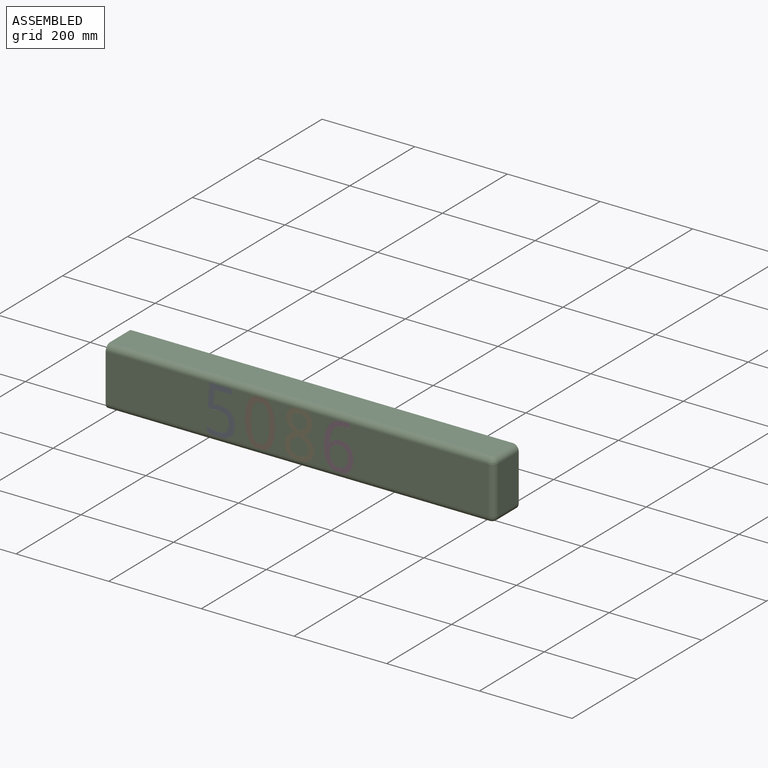
[diagram: assembled view]
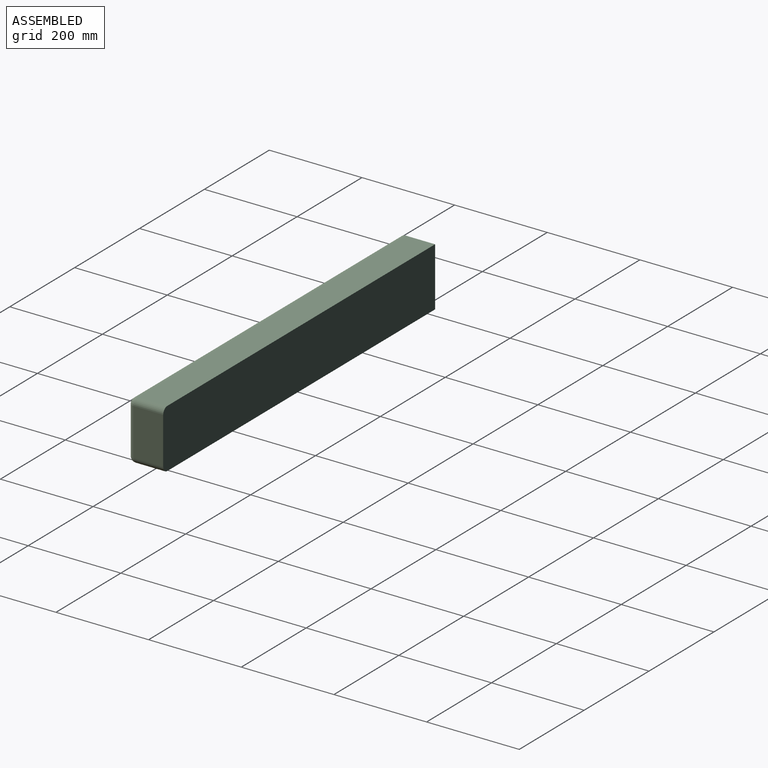
[diagram: assembled view, second angle]
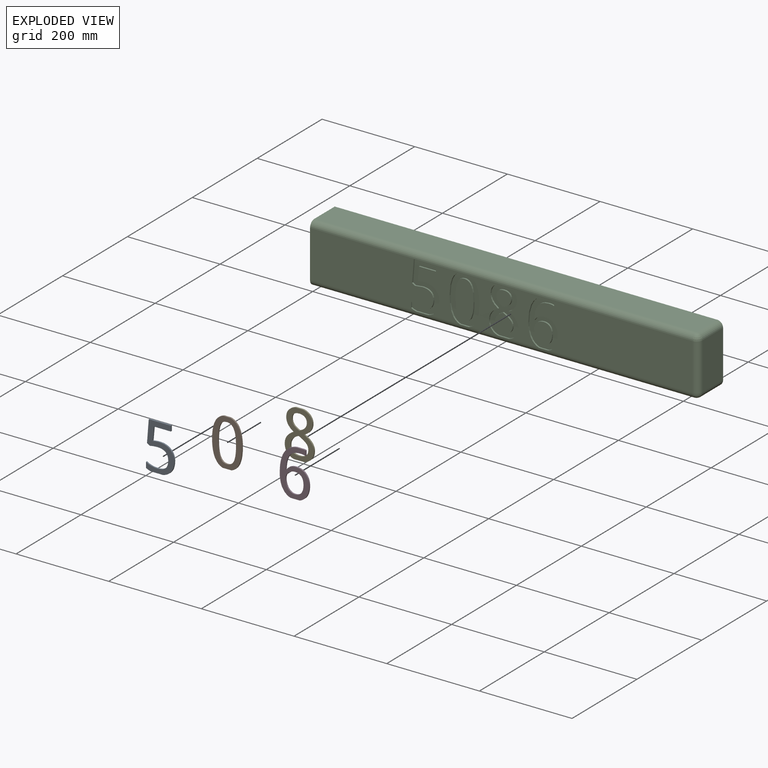
[diagram: exploded view]
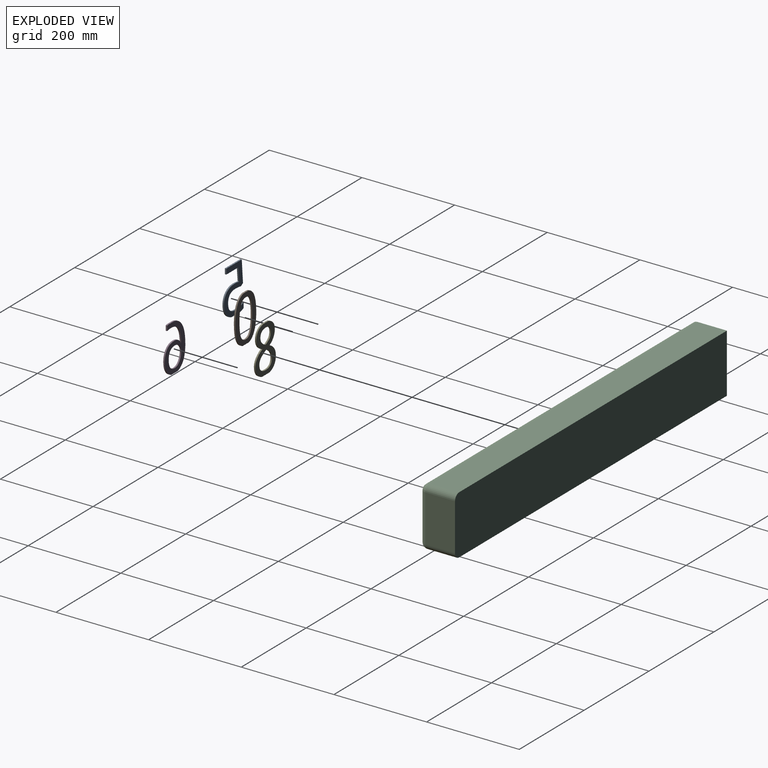
[diagram: exploded view, second angle]
ASSEMBLY  parts=5 mates=4
PART A: 20 faces, bbox 60.8x3.2x101.1 mm
  f0: extruded ~14.28x7.4mm, area 51.6mm2, adj f1,f17,f18,f19
  f1: extruded ~24.93x9.51mm, area 87.3mm2, adj f0,f2,f18,f19
  f2: extruded ~21.6x8.92mm, area 76.6mm2, adj f1,f3,f18,f19
  f3: extruded ~23.4x7.88mm, area 80.2mm2, adj f2,f4,f18,f19
  f4: extruded ~14.4x3.18mm, area 46mm2, adj f3,f5,f18,f19
  f5: plane 28.86x3.18mm, normal (1,0,-0.09), area 92mm2, adj f4,f6,f18,f19
  f6: plane 36.67x3.18mm, normal (0,0,-1), area 116.4mm2, adj f5,f7,f18,f19
  f7: plane 11.44x3.18mm, normal (1,0,0), area 36.3mm2, adj f6,f8,f18,f19
  f8: plane 47.56x3.18mm, normal (0,0,1), area 151mm2, adj f7,f9,f18,f19
  f9: plane 47.4x3.79mm, normal (-1,0,0.08), area 151mm2, adj f8,f10,f18,f19
  f10: plane 6.22x3.92mm, normal (-0.53,0,-0.85), area 23.3mm2, adj f9,f11,f18,f19
  f11: extruded ~15.92x3.18mm, area 50.9mm2, adj f10,f12,f18,f19
  f12: extruded ~23.7x20.26mm, area 113.4mm2, adj f11,f13,f18,f19
  f13: extruded ~23.15x21.63mm, area 115.4mm2, adj f12,f14,f18,f19
  f14: extruded ~24.8x6.61mm, area 82.7mm2, adj f13,f15,f18,f19
  f15: plane 11.86x3.18mm, normal (-1,0,0), area 37.7mm2, adj f14,f16,f18,f19
  f16: extruded ~10.55x4.06mm, area 36mm2, adj f15,f17,f18,f19
  f17: plane 26.49x3.18mm, normal (0,0,-1), area 84.1mm2, adj f0,f16,f18,f19
  f18: plane 101.14x60.83mm, normal (0,1,0), area 2432.5mm2, adj f0,f1,f2,f3,f4,f5,f6,f7
  f19: plane 101.14x60.83mm, normal (0,-1,0), area 2432.5mm2, adj f0,f1,f2,f3,f4,f5,f6,f7
PART B: 18 faces, bbox 64.4x3.2x103.7 mm
  f0: extruded ~14.87x9.68mm, area 59.8mm2, adj f1,f15,f16,f17
  f1: extruded ~14.65x9.65mm, area 59.2mm2, adj f0,f2,f16,f17
  f2: extruded ~31.56x4.64mm, area 102mm2, adj f1,f3,f16,f17
  f3: extruded ~31.44x4.64mm, area 101.6mm2, adj f2,f4,f16,f17
  f4: extruded ~14.65x9.61mm, area 59.1mm2, adj f3,f5,f16,f17
  f5: extruded ~14.87x9.68mm, area 59.8mm2, adj f4,f6,f16,f17
  f6: extruded ~31.38x4.75mm, area 101.5mm2, adj f5,f15,f16,f17
  f7: extruded ~14.53x11.95mm, area 61.1mm2, adj f8,f14,f16,f17
  f8: plane 19.1x3.18mm, normal (0,0,-1), area 60.6mm2, adj f7,f9,f16,f17
  f9: extruded ~50.51x22.6mm, area 188.1mm2, adj f8,f10,f16,f17
  f10: extruded ~38.48x8.16mm, area 126.4mm2, adj f9,f11,f16,f17
  f11: extruded ~17.1x12.61mm, area 69.5mm2, adj f10,f12,f16,f17
  f12: plane 14.19x3.18mm, normal (0,0,1), area 45mm2, adj f11,f13,f16,f17
  f13: extruded ~51.09x24.91mm, area 195.6mm2, adj f12,f14,f16,f17
  f14: extruded ~38.56x8.14mm, area 126.6mm2, adj f7,f13,f16,f17
  f15: extruded ~31.53x4.75mm, area 102mm2, adj f0,f6,f16,f17
  f16: plane 103.72x64.36mm, normal (0,1,0), area 2814.7mm2, adj f0,f1,f2,f3,f4,f5,f6,f7
  f17: plane 103.72x64.36mm, normal (0,-1,0), area 2814.7mm2, adj f0,f1,f2,f3,f4,f5,f6,f7
PART C: 110 faces, bbox 838.2x76.2x127 mm
  f0: plane 103.72x71.73mm, normal (0,-1,0), area 3307.8mm2, adj f10,f15,f53,f62,f63,f64,f65,f67
  f1: plane 102.7x86.81mm, normal (0,-1,0), area 3521.3mm2, adj f10,f15,f23,f37,f38,f55,f56,f57
  f2: plane 341.64x102mm, normal (0,-1,0), area 31270.8mm2, adj f10,f13,f15,f25,f26,f27,f28,f29
  f3: plane 838.2x127mm, normal (0,1,0), area 106382.2mm2, adj f4,f6,f7,f8,f9,f12
  f4: plane 825.5x63.5mm, normal (0,0,1), area 52419.2mm2, adj f3,f8,f12,f15
  f5: plane 330.51x102.99mm, normal (0,-1,0), area 28673.3mm2, adj f8,f10,f15,f78,f84,f85,f88,f89
  f6: plane 825.5x63.5mm, normal (0,0,-1), area 52419.2mm2, adj f3,f8,f9,f10
  f7: plane 101.6x63.5mm, normal (1,0,0), area 6451.6mm2, adj f3,f9,f12,f13
  f8: plane 127x76.2mm, normal (-1,0,0), area 9608.2mm2, adj f3,f4,f5,f6,f10,f15
  f9: cylinder r=12.7mm len=63.5mm, axis (0,-1,0), area 1266.8mm2, adj f3,f6,f7,f11
  f10: cylinder r=12.7mm len=825.5mm, axis (1,0,0), area 16468mm2, adj f0,f1,f2,f5,f6,f8,f11,f24
  f11: sphere r=12.7mm, area 253.4mm2, adj f9,f10,f13
  f12: cylinder r=12.7mm len=63.5mm, axis (0,1,0), area 1266.8mm2, adj f3,f4,f7,f14
  f13: cylinder r=12.7mm len=101.6mm, axis (0,0,1), area 2026.8mm2, adj f2,f7,f11,f14
  f14: sphere r=12.7mm, area 253.4mm2, adj f12,f13,f15
  f15: cylinder r=12.7mm len=825.5mm, axis (-1,0,0), area 16468mm2, adj f0,f1,f2,f4,f5,f8,f14,f36
  f16: extruded ~15.37x4.72mm, area 52.2mm2, adj f17,f39,f40,f107
  f17: extruded ~17.22x4.92mm, area 58mm2, adj f16,f18,f40,f107
  f18: extruded ~13.67x6.06mm, area 49.2mm2, adj f17,f19,f40,f107
  f19: extruded ~14.62x7.61mm, area 54.5mm2, adj f18,f20,f40,f107
  f20: extruded ~18.08x5.58mm, area 61.1mm2, adj f19,f21,f40,f107
  f21: extruded ~12.76x5.93mm, area 46mm2, adj f20,f22,f40,f107
  f22: extruded ~14.66x5.59mm, area 51.1mm2, adj f21,f39,f40,f107
  f23: extruded ~14.29x10.23mm, area 56.7mm2, adj f1,f24,f38,f40
  f24: plane 19.73x3.18mm, normal (0,0,1), area 62.6mm2, adj f10,f23,f25,f40
  f25: extruded ~12.2x7.67mm, area 46.3mm2, adj f2,f24,f26,f40
  f26: extruded ~24.78x8.3mm, area 85mm2, adj f2,f25,f27,f40
  f27: extruded ~22.39x7.61mm, area 76.9mm2, adj f2,f26,f28,f40
  f28: extruded ~21.06x8.19mm, area 73.9mm2, adj f2,f27,f29,f40
  f29: extruded ~21.14x11.71mm, area 80.9mm2, adj f2,f28,f30,f40
  f30: plane 3.18x0.82mm, normal (0,0,-1), area 2.6mm2, adj f2,f29,f31,f40
  f31: extruded ~30.8x8.43mm, area 103mm2, adj f2,f30,f32,f40
  f32: extruded ~23.18x9.72mm, area 82.8mm2, adj f2,f31,f33,f40
  f33: extruded ~11.44x3.18mm, area 36.9mm2, adj f2,f32,f34,f40
  f34: plane 10.67x3.18mm, normal (-1,0,0), area 33.9mm2, adj f2,f33,f35,f40
  f35: extruded ~3.44x3.18mm, area 11.2mm2, adj f2,f34,f36,f40
  f36: plane 16.67x3.18mm, normal (0,0,-1), area 52.9mm2, adj f15,f35,f37,f40
  f37: extruded ~58.54x35.79mm, area 240.6mm2, adj f1,f36,f38,f40
  f38: extruded ~32.83x8.93mm, area 110mm2, adj f1,f23,f37,f40
  f39: extruded ~13.47x5.38mm, area 47.6mm2, adj f16,f22,f40,f107
  f40: plane 102.7x63.46mm, normal (0,-1,0), area 2724.5mm2, adj f16,f17,f18,f19,f20,f21,f22,f23
  f41: extruded ~22.4x17.51mm, area 95.7mm2, adj f42,f68,f69,f108
  f42: plane 3.18x2.05mm, normal (0.43,0,0.9), area 7.2mm2, adj f41,f43,f69,f108
  f43: extruded ~14.75x9.88mm, area 56.7mm2, adj f42,f44,f69,f108
  f44: extruded ~11x4.34mm, area 38.5mm2, adj f43,f45,f69,f108
  f45: extruded ~12.57x5.14mm, area 44.5mm2, adj f44,f46,f69,f108
  f46: extruded ~14.51x4.52mm, area 49.3mm2, adj f45,f68,f69,f108
  f47: extruded ~19.16x15.99mm, area 84.2mm2, adj f48,f66,f69,f70
  f48: extruded ~12.78x8.65mm, area 49.4mm2, adj f47,f49,f69,f70
  f49: extruded ~10.51x3.41mm, area 35.8mm2, adj f48,f50,f69,f70
  f50: extruded ~10.61x4.3mm, area 37.6mm2, adj f49,f51,f69,f70
  f51: extruded ~11.62x3.66mm, area 39.5mm2, adj f50,f52,f69,f70
  f52: extruded ~11.91x3.66mm, area 40.4mm2, adj f51,f66,f69,f70
  f53: extruded ~11.36x5.74mm, area 40.8mm2, adj f0,f54,f67,f69
  f54: plane 23.05x3.18mm, normal (0,0,1), area 73.2mm2, adj f10,f53,f55,f69
  f55: extruded ~11.76x6.2mm, area 42.6mm2, adj f1,f54,f56,f69
  f56: extruded ~20.06x8.68mm, area 71.7mm2, adj f1,f55,f57,f69
  f57: extruded ~27.08x21.28mm, area 115.3mm2, adj f1,f56,f58,f69
  f58: extruded ~24.74x18.04mm, area 103mm2, adj f1,f57,f59,f69
  f59: extruded ~17.71x7.85mm, area 63.7mm2, adj f1,f58,f60,f69
  f60: extruded ~12.61x5.82mm, area 44.6mm2, adj f1,f59,f61,f69
  f61: plane 15.64x3.18mm, normal (0,0,-1), area 49.6mm2, adj f15,f60,f62,f69
  f62: extruded ~12.57x5.79mm, area 44.4mm2, adj f0,f61,f63,f69
  f63: extruded ~17.61x8.04mm, area 63.7mm2, adj f0,f62,f64,f69
  f64: extruded ~25.42x16.21mm, area 100.4mm2, adj f0,f63,f65,f69
  f65: extruded ~27.08x19.43mm, area 112.3mm2, adj f0,f64,f67,f69
  f66: extruded ~10.61x4.34mm, area 37.6mm2, adj f47,f52,f69,f70
  f67: extruded ~19.97x8.33mm, area 71mm2, adj f0,f53,f65,f69
  f68: extruded ~19.01x16.54mm, area 91.7mm2, adj f41,f46,f69,f108
  f69: plane 102.23x63.17mm, normal (0,-1,0), area 3090.1mm2, adj f41,f42,f43,f44,f45,f46,f47,f48
  f70: plane 33.43x32.17mm, normal (0,-1,0), area 816.9mm2, adj f47,f48,f49,f50,f51,f52,f66
  f71: extruded ~14.87x9.68mm, area 59.8mm2, adj f72,f86,f87,f109
  f72: extruded ~14.65x9.65mm, area 59.2mm2, adj f71,f73,f87,f109
  f73: extruded ~31.56x4.64mm, area 102mm2, adj f72,f74,f87,f109
  f74: extruded ~31.44x4.64mm, area 101.6mm2, adj f73,f75,f87,f109
  f75: extruded ~14.65x9.61mm, area 59.1mm2, adj f74,f76,f87,f109
  f76: extruded ~14.87x9.68mm, area 59.8mm2, adj f75,f77,f87,f109
  f77: extruded ~31.38x4.75mm, area 101.5mm2, adj f76,f86,f87,f109
  f78: extruded ~14.53x11.95mm, area 61.1mm2, adj f5,f79,f85,f87
  f79: plane 19.1x3.18mm, normal (0,0,1), area 60.6mm2, adj f10,f78,f80,f87
  f80: extruded ~50.51x22.6mm, area 188.1mm2, adj f0,f79,f81,f87
  f81: extruded ~38.48x8.16mm, area 126.4mm2, adj f0,f80,f82,f87
  f82: extruded ~17.1x12.61mm, area 69.5mm2, adj f0,f81,f83,f87
  f83: plane 14.19x3.18mm, normal (0,0,-1), area 45mm2, adj f15,f82,f84,f87
  f84: extruded ~51.09x24.91mm, area 195.6mm2, adj f5,f83,f85,f87
  f85: extruded ~38.56x8.14mm, area 126.6mm2, adj f5,f78,f84,f87
  f86: extruded ~31.53x4.75mm, area 102mm2, adj f71,f77,f87,f109
  f87: plane 103.72x64.36mm, normal (0,-1,0), area 2814.7mm2, adj f71,f72,f73,f74,f75,f76,f77,f78
  f88: extruded ~14.28x7.4mm, area 51.6mm2, adj f5,f89,f105,f106
  f89: extruded ~24.93x9.51mm, area 87.3mm2, adj f5,f88,f90,f106
  f90: extruded ~21.6x8.92mm, area 76.6mm2, adj f5,f89,f91,f106
  f91: extruded ~23.4x7.88mm, area 80.2mm2, adj f5,f90,f92,f106
  f92: extruded ~14.4x3.18mm, area 46mm2, adj f5,f91,f93,f106
  f93: plane 28.86x3.18mm, normal (-1,0,0.09), area 92mm2, adj f5,f92,f94,f106
  f94: plane 36.67x3.18mm, normal (0,0,1), area 116.4mm2, adj f5,f93,f95,f106
  f95: plane 11.44x3.18mm, normal (-1,0,0), area 36.3mm2, adj f5,f94,f96,f106
  f96: plane 47.56x3.18mm, normal (0,0,-1), area 151mm2, adj f5,f95,f97,f106
  f97: plane 47.4x3.79mm, normal (1,0,-0.08), area 151mm2, adj f5,f96,f98,f106
  f98: plane 6.22x3.92mm, normal (0.53,0,0.85), area 23.3mm2, adj f5,f97,f99,f106
  f99: extruded ~15.92x3.18mm, area 50.9mm2, adj f5,f98,f100,f106
  f100: extruded ~23.7x20.26mm, area 113.4mm2, adj f5,f99,f101,f106
  f101: extruded ~23.15x21.63mm, area 115.4mm2, adj f5,f100,f102,f106
  f102: extruded ~24.8x6.61mm, area 82.7mm2, adj f5,f101,f103,f106
  f103: plane 11.86x3.18mm, normal (1,0,0), area 37.7mm2, adj f5,f102,f104,f106
  f104: extruded ~10.55x4.06mm, area 36mm2, adj f5,f103,f105,f106
  f105: plane 26.49x3.18mm, normal (0,0,1), area 84.1mm2, adj f10,f88,f104,f106
  f106: plane 101.14x60.83mm, normal (0,-1,0), area 2432.5mm2, adj f88,f89,f90,f91,f92,f93,f94,f95
  f107: plane 44.03x38.78mm, normal (0,-1,0), area 1376mm2, adj f16,f17,f18,f19,f20,f21,f22,f39
  f108: plane 38.94x38.65mm, normal (0,-1,0), area 1137.3mm2, adj f41,f42,f43,f44,f45,f46,f68
  f109: plane 82.26x38.92mm, normal (0,-1,0), area 2705.5mm2, adj f71,f72,f73,f74,f75,f76,f77,f86
PART D: 26 faces, bbox 63.5x3.2x102.7 mm
  f0: extruded ~15.37x4.72mm, area 52.2mm2, adj f1,f23,f24,f25
  f1: extruded ~17.22x4.92mm, area 58mm2, adj f0,f2,f24,f25
  f2: extruded ~13.67x6.06mm, area 49.2mm2, adj f1,f3,f24,f25
  f3: extruded ~14.62x7.61mm, area 54.5mm2, adj f2,f4,f24,f25
  f4: extruded ~18.08x5.58mm, area 61.1mm2, adj f3,f5,f24,f25
  f5: extruded ~12.76x5.93mm, area 46mm2, adj f4,f6,f24,f25
  f6: extruded ~14.66x5.59mm, area 51.1mm2, adj f5,f23,f24,f25
  f7: extruded ~14.29x10.23mm, area 56.7mm2, adj f8,f22,f24,f25
  f8: plane 19.73x3.18mm, normal (0,0,-1), area 62.6mm2, adj f7,f9,f24,f25
  f9: extruded ~12.2x7.67mm, area 46.3mm2, adj f8,f10,f24,f25
  f10: extruded ~24.78x8.3mm, area 85mm2, adj f9,f11,f24,f25
  f11: extruded ~22.39x7.61mm, area 76.9mm2, adj f10,f12,f24,f25
  f12: extruded ~21.06x8.19mm, area 73.9mm2, adj f11,f13,f24,f25
  f13: extruded ~21.14x11.71mm, area 80.9mm2, adj f12,f14,f24,f25
  f14: plane 3.18x0.82mm, normal (0,0,1), area 2.6mm2, adj f13,f15,f24,f25
  f15: extruded ~30.8x8.43mm, area 103mm2, adj f14,f16,f24,f25
  f16: extruded ~23.18x9.72mm, area 82.8mm2, adj f15,f17,f24,f25
  f17: extruded ~11.44x3.18mm, area 36.9mm2, adj f16,f18,f24,f25
  f18: plane 10.67x3.18mm, normal (1,0,0), area 33.9mm2, adj f17,f19,f24,f25
  f19: extruded ~3.44x3.18mm, area 11.2mm2, adj f18,f20,f24,f25
  f20: plane 16.67x3.18mm, normal (0,0,1), area 52.9mm2, adj f19,f21,f24,f25
  f21: extruded ~58.54x35.79mm, area 240.6mm2, adj f20,f22,f24,f25
  f22: extruded ~32.83x8.93mm, area 110mm2, adj f7,f21,f24,f25
  f23: extruded ~13.47x5.38mm, area 47.6mm2, adj f0,f6,f24,f25
  f24: plane 102.7x63.46mm, normal (0,1,0), area 2724.5mm2, adj f0,f1,f2,f3,f4,f5,f6,f7
  f25: plane 102.7x63.46mm, normal (0,-1,0), area 2724.5mm2, adj f0,f1,f2,f3,f4,f5,f6,f7
PART E: 30 faces, bbox 63.2x3.2x102.2 mm
  f0: extruded ~22.4x17.51mm, area 95.7mm2, adj f1,f27,f28,f29
  f1: plane 3.18x2.05mm, normal (-0.43,0,-0.9), area 7.2mm2, adj f0,f2,f28,f29
  f2: extruded ~14.75x9.88mm, area 56.7mm2, adj f1,f3,f28,f29
  f3: extruded ~11x4.34mm, area 38.5mm2, adj f2,f4,f28,f29
  f4: extruded ~12.57x5.14mm, area 44.5mm2, adj f3,f5,f28,f29
  f5: extruded ~14.51x4.52mm, area 49.3mm2, adj f4,f27,f28,f29
  f6: extruded ~19.16x15.99mm, area 84.2mm2, adj f7,f25,f28,f29
  f7: extruded ~12.78x8.65mm, area 49.4mm2, adj f6,f8,f28,f29
  f8: extruded ~10.51x3.41mm, area 35.8mm2, adj f7,f9,f28,f29
  f9: extruded ~10.61x4.3mm, area 37.6mm2, adj f8,f10,f28,f29
  f10: extruded ~11.62x3.66mm, area 39.5mm2, adj f9,f11,f28,f29
  f11: extruded ~11.91x3.66mm, area 40.4mm2, adj f10,f25,f28,f29
  f12: extruded ~11.36x5.74mm, area 40.8mm2, adj f13,f26,f28,f29
  f13: plane 23.05x3.18mm, normal (0,0,-1), area 73.2mm2, adj f12,f14,f28,f29
  f14: extruded ~11.76x6.2mm, area 42.6mm2, adj f13,f15,f28,f29
  f15: extruded ~20.06x8.68mm, area 71.7mm2, adj f14,f16,f28,f29
  f16: extruded ~27.08x21.28mm, area 115.3mm2, adj f15,f17,f28,f29
  f17: extruded ~24.74x18.04mm, area 103mm2, adj f16,f18,f28,f29
  f18: extruded ~17.71x7.85mm, area 63.7mm2, adj f17,f19,f28,f29
  f19: extruded ~12.61x5.82mm, area 44.6mm2, adj f18,f20,f28,f29
  f20: plane 15.64x3.18mm, normal (0,0,1), area 49.6mm2, adj f19,f21,f28,f29
  f21: extruded ~12.57x5.79mm, area 44.4mm2, adj f20,f22,f28,f29
  f22: extruded ~17.61x8.04mm, area 63.7mm2, adj f21,f23,f28,f29
  f23: extruded ~25.42x16.21mm, area 100.4mm2, adj f22,f24,f28,f29
  f24: extruded ~27.08x19.43mm, area 112.3mm2, adj f23,f26,f28,f29
  f25: extruded ~10.61x4.34mm, area 37.6mm2, adj f6,f11,f28,f29
  f26: extruded ~19.97x8.33mm, area 71mm2, adj f12,f24,f28,f29
  f27: extruded ~19.01x16.54mm, area 91.7mm2, adj f0,f5,f28,f29
  f28: plane 102.23x63.17mm, normal (0,1,0), area 3090.1mm2, adj f0,f1,f2,f3,f4,f5,f6,f7
  f29: plane 102.23x63.17mm, normal (0,-1,0), area 3090.1mm2, adj f0,f1,f2,f3,f4,f5,f6,f7
PLACE A at identity
PLACE B at identity
PLACE C at identity
PLACE D at identity
PLACE E at identity
MATE fastened D.f24 <-> C.f40  axis (0,1,0) through (515.15,-34.93,50.8)mm
MATE fastened A.f18 <-> C.f106  axis (0,1,0) through (247.9,-34.93,49.94)mm
MATE fastened E.f28 <-> C.f69  axis (0,1,0) through (418.14,-34.93,50.8)mm
MATE fastened B.f16 <-> C.f87  axis (0,1,0) through (333.17,-34.93,50.8)mm
